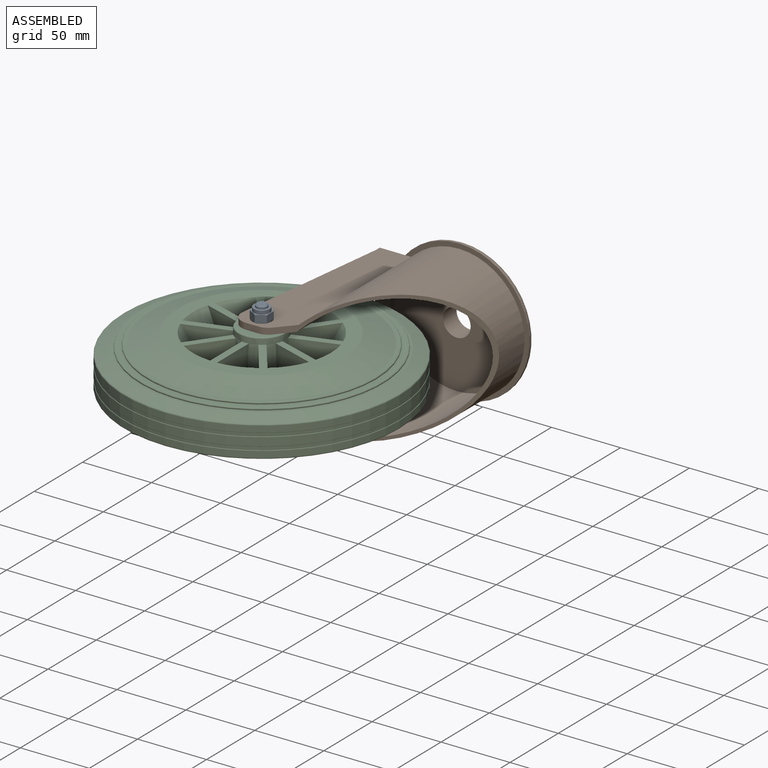
[diagram: assembled view]
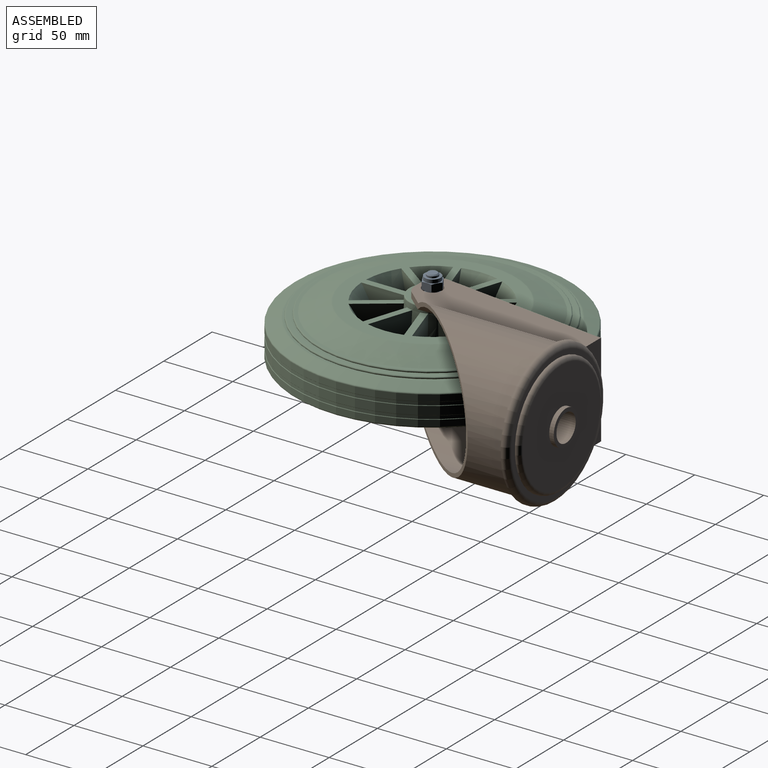
[diagram: assembled view, second angle]
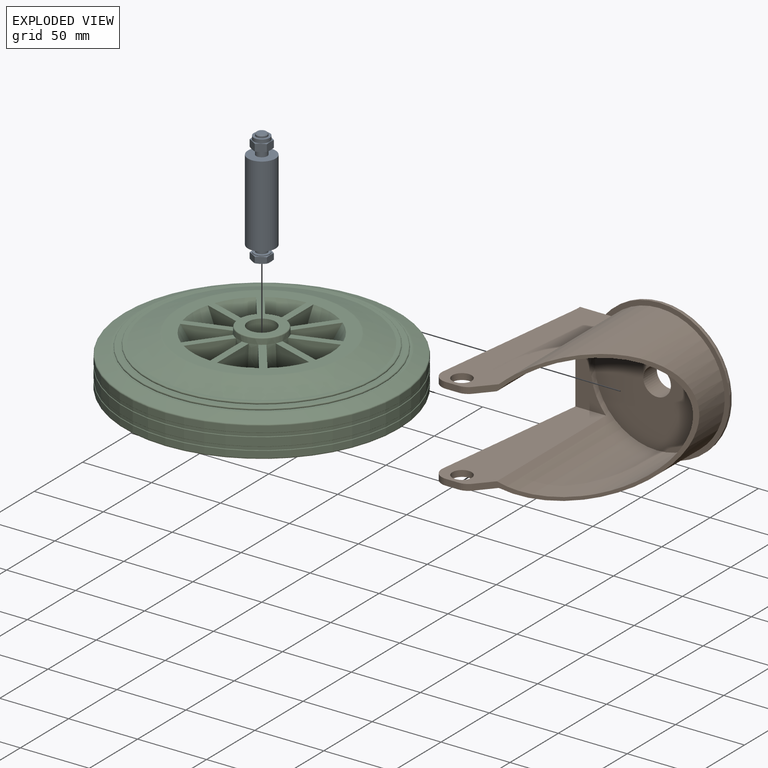
[diagram: exploded view]
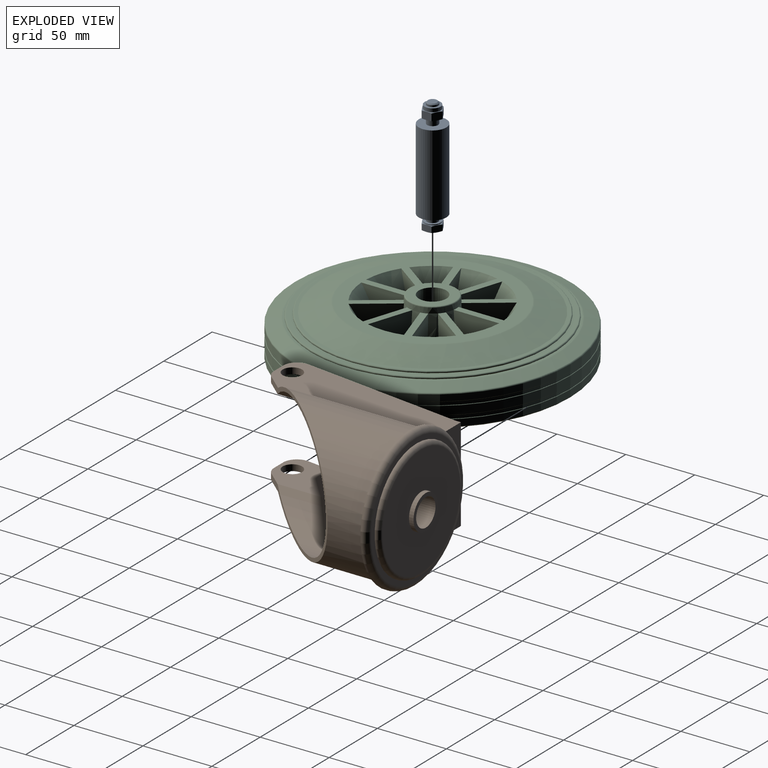
[diagram: exploded view, second angle]
ASSEMBLY  parts=3 mates=2
PART A: 52 faces, bbox 20.5x20.5x83.8 mm
  f0: cone r=4mm half-angle=45deg, axis (0,0,-1), area 24.6mm2, adj f4,f47
  f1: cylinder r=5.81mm len=11.63mm, axis (0,0,1), area 21.9mm2, adj f28,f46
  f2: cylinder r=5.81mm len=11.63mm, axis (0,0,1), area 91.3mm2, adj f12,f41
  f3: cylinder r=4mm len=8mm, axis (0,0,1), area 113.1mm2, adj f45,f46
  f4: cylinder r=4mm len=8mm, axis (0,0,1), area 31mm2, adj f0,f41
  f5: cylinder r=4mm len=8mm, axis (0,0,1), area 113.1mm2, adj f15,f44
  f6: cylinder r=10mm len=59mm, axis (0,0,1), area 3707.1mm2, adj f44,f45
  f7: cone r=7.51mm half-angle=75deg, axis (0,0,1), area 3.5mm2, adj f15,f16,f20
  f8: plane 12.52x12.52mm, normal (0,0,-1), area 123mm2, adj f29,f32,f48,f49,f50,f51
  f9: plane 6.78x6.03mm, normal (-0.5,0.87,0), area 38.5mm2, adj f10,f11,f14,f19,f39,f40
  f10: cone r=6.26mm half-angle=75deg, axis (0,0,-1), area 3.5mm2, adj f9,f12,f14
  f11: cone r=6.26mm half-angle=75deg, axis (0,0,-1), area 3.5mm2, adj f9,f12,f19
  f12: plane 12.52x12.52mm, normal (0,0,1), area 16.8mm2, adj f2,f10,f11,f17,f18,f42,f43
  f13: cone r=7.51mm half-angle=75deg, axis (0,0,1), area 3.5mm2, adj f15,f19,f21
  f14: plane 6.78x6.03mm, normal (0.5,0.87,0), area 38.5mm2, adj f9,f10,f16,f38,f40,f42
  f15: plane 12.52x12.52mm, normal (0,0,-1), area 72.8mm2, adj f5,f7,f13,f22,f38,f39,f40
  f16: plane 7.76x6.04mm, normal (1,0,0), area 38.5mm2, adj f7,f14,f20,f38,f42,f43
  f17: cone r=6.26mm half-angle=75deg, axis (0,0,-1), area 3.5mm2, adj f12,f19,f21
  f18: cone r=6.26mm half-angle=75deg, axis (0,0,-1), area 3.5mm2, adj f12,f20,f21
  f19: plane 7.76x6.04mm, normal (-1,0,0), area 38.5mm2, adj f9,f11,f13,f17,f21,f39
  f20: plane 6.78x6.03mm, normal (0.5,-0.87,0), area 38.5mm2, adj f7,f16,f18,f21,f22,f43
  f21: plane 6.78x6.03mm, normal (-0.5,-0.87,0), area 38.5mm2, adj f13,f17,f18,f19,f20,f22
  f22: cone r=7.51mm half-angle=75deg, axis (0,0,1), area 3.5mm2, adj f15,f20,f21
  f23: plane 7.76x5.24mm, normal (-1,0,0), area 32.7mm2, adj f24,f25,f29,f32,f33,f35
  f24: cone r=7.51mm half-angle=75deg, axis (0,0,-1), area 3.5mm2, adj f23,f28,f35
  f25: cone r=7.51mm half-angle=75deg, axis (0,0,-1), area 3.5mm2, adj f23,f28,f33
  f26: cone r=7.51mm half-angle=75deg, axis (0,0,-1), area 3.5mm2, adj f28,f34,f35
  f27: cone r=7.51mm half-angle=75deg, axis (0,0,-1), area 3.5mm2, adj f28,f31,f34
  f28: plane 12.52x12.52mm, normal (0,0,1), area 16.8mm2, adj f1,f24,f25,f26,f27,f36,f37
  f29: cone r=6.26mm half-angle=75deg, axis (0,0,1), area 3.5mm2, adj f8,f23,f35
  f30: plane 6.78x5.23mm, normal (0.5,0.87,0), area 32.7mm2, adj f31,f33,f36,f37,f48,f49
  f31: plane 7.76x5.24mm, normal (1,0,0), area 32.7mm2, adj f27,f30,f34,f37,f49,f50
  f32: cone r=6.26mm half-angle=75deg, axis (0,0,1), area 3.5mm2, adj f8,f23,f33
  f33: plane 6.78x5.23mm, normal (-0.5,0.87,0), area 32.7mm2, adj f23,f25,f30,f32,f36,f48
  f34: plane 6.78x5.23mm, normal (0.5,-0.87,0), area 32.7mm2, adj f26,f27,f31,f35,f50,f51
  f35: plane 6.78x5.23mm, normal (-0.5,-0.87,0), area 32.7mm2, adj f23,f24,f26,f29,f34,f51
  f36: cone r=7.51mm half-angle=75deg, axis (0,0,-1), area 3.5mm2, adj f28,f30,f33
  f37: cone r=7.51mm half-angle=75deg, axis (0,0,-1), area 3.5mm2, adj f28,f30,f31
  f38: cone r=7.51mm half-angle=75deg, axis (0,0,1), area 3.5mm2, adj f14,f15,f16
  f39: cone r=7.51mm half-angle=75deg, axis (0,0,1), area 3.5mm2, adj f9,f15,f19
  f40: cone r=7.51mm half-angle=75deg, axis (0,0,1), area 3.5mm2, adj f9,f14,f15
  f41: plane 11.63x11.63mm, normal (0,0,1), area 56mm2, adj f2,f4
  f42: cone r=6.26mm half-angle=75deg, axis (0,0,-1), area 3.5mm2, adj f12,f14,f16
  f43: cone r=6.26mm half-angle=75deg, axis (0,0,-1), area 3.5mm2, adj f12,f16,f20
  f44: plane 20x20mm, normal (0,0,1), area 263.9mm2, adj f5,f6
  f45: plane 20x20mm, normal (0,0,-1), area 263.9mm2, adj f3,f6
  f46: plane 11.63x11.63mm, normal (0,0,1), area 56mm2, adj f1,f3
  f47: plane 6.47x6.47mm, normal (0,0,1), area 32.8mm2, adj f0
  f48: cone r=6.26mm half-angle=75deg, axis (0,0,1), area 3.5mm2, adj f8,f30,f33
  f49: cone r=6.26mm half-angle=75deg, axis (0,0,1), area 3.5mm2, adj f8,f30,f31
  f50: cone r=6.26mm half-angle=75deg, axis (0,0,1), area 3.5mm2, adj f8,f31,f34
  f51: cone r=6.26mm half-angle=75deg, axis (0,0,1), area 3.5mm2, adj f8,f34,f35
PART B: 30 faces, bbox 129.8x149.9x114.3 mm
  f0: cylinder r=10mm len=20mm, axis (0,-1,0), area 879.6mm2, adj f12,f26
  f1: cylinder r=51mm len=102mm, axis (0,-1,0), area 320.4mm2, adj f2,f28
  f2: torus R=47mm, axis (0,-1,0), area 1956mm2, adj f1,f29
  f3: cylinder r=43.35mm len=86.7mm, axis (0,-1,0), area 136.2mm2, adj f4,f29
  f4: torus R=40.35mm, axis (0,-1,0), area 1251.3mm2, adj f3,f27
  f5: cylinder r=12.75mm len=25.5mm, axis (0,-1,0), area 264.4mm2, adj f26,f27
  f6: cylinder r=7mm len=14mm, axis (0,0,-1), area 197.9mm2, adj f14,f18
  f7: cylinder r=7mm len=14mm, axis (0,0,-1), area 197.9mm2, adj f20,f23
  f8: cylinder r=10mm len=11.24mm, axis (0,0,-1), area 76.3mm2, adj f19,f20,f22,f23
  f9: cylinder r=10mm len=11.24mm, axis (0,0,-1), area 76.3mm2, adj f14,f17,f18,f19
  f10: cylinder r=45mm len=117.38mm, axis (0,-1,0), area 14340.5mm2, adj f12,f13,f14,f15,f20
  f11: cylinder r=47.5mm len=118.65mm, axis (0,-1,0), area 14418.2mm2, adj f15,f18,f23,f24,f28
  f12: plane 90x90mm, normal (0,-1,0), area 6047.6mm2, adj f0,f10
  f13: plane 59x22.14mm, normal (0,-1,0), area 861.2mm2, adj f10,f14,f19,f20
  f14: plane 127.5x36.72mm, normal (0,0,-1), area 3558.2mm2, adj f6,f9,f10,f13,f15,f16,f17,f19
  f15: plane 108.41x98.94mm, normal (0.75,-0.66,0), area 977.1mm2, adj f10,f11,f14,f16,f18,f20,f21,f23
  f16: cylinder r=10mm len=7.53mm, axis (0,0,-1), area 38.4mm2, adj f14,f15,f17,f18
  f17: plane 9.4x4.5mm, normal (0,-1,0), area 42.3mm2, adj f9,f14,f16,f18
  f18: plane 132.2x37.53mm, normal (0,0,1), area 3756.8mm2, adj f6,f9,f11,f15,f16,f17,f19,f24
  f19: plane 117.26x68mm, normal (-0.99,0.12,0), area 1123mm2, adj f8,f9,f13,f14,f18,f20,f23,f25
  f20: plane 127.5x36.72mm, normal (0,0,1), area 3558.2mm2, adj f7,f8,f10,f13,f15,f19,f21,f22
  f21: cylinder r=10mm len=7.53mm, axis (0,0,-1), area 38.4mm2, adj f15,f20,f22,f23
  f22: plane 9.4x4.5mm, normal (0,-1,0), area 42.3mm2, adj f8,f20,f21,f23
  f23: plane 132.2x37.53mm, normal (0,0,-1), area 3756.8mm2, adj f7,f8,f11,f15,f19,f21,f22,f24
  f24: plane 68x22.83mm, normal (0,1,0), area 880.3mm2, adj f11,f18,f23,f25
  f25: plane 68x3.7mm, normal (-1,0,0), area 251.6mm2, adj f18,f19,f23,f24
  f26: plane 25.5x25.5mm, normal (0,1,0), area 196.5mm2, adj f0,f5
  f27: plane 80.7x80.7mm, normal (0,1,0), area 4604.2mm2, adj f4,f5
  f28: plane 102x102mm, normal (0,-1,0), area 1083.1mm2, adj f1,f11
  f29: plane 94x94mm, normal (0,1,0), area 1036mm2, adj f2,f3
PART C: 139 faces, bbox 216.5x216.5x59 mm
  f0: torus R=87.26mm, axis (0,0,-1), area 1444.1mm2, adj f137,f138
  f1: torus R=82.42mm, axis (0,0,-1), area 1364.5mm2, adj f136,f137
  f2: torus R=82.42mm, axis (0,0,-1), area 1364.5mm2, adj f134,f135
  f3: torus R=87.26mm, axis (0,0,-1), area 1444.1mm2, adj f133,f134
  f4: cylinder r=100mm len=200mm, axis (0,0,-1), area 2836mm2, adj f5,f26
  f5: torus R=99mm, axis (0,0,-1), area 776.8mm2, adj f4,f6
  f6: cone r=90.16mm half-angle=71deg, axis (0,0,1), area 5773.3mm2, adj f5,f7
  f7: torus R=89.18mm, axis (0,0,-1), area 560.5mm2, adj f6,f138
  f8: cone r=60.47mm half-angle=71deg, axis (0,0,1), area 9113.3mm2, adj f9,f136
  f9: torus R=59.5mm, axis (0,0,-1), area 375mm2, adj f8,f38
  f10: torus R=59.5mm, axis (0,0,-1), area 375mm2, adj f11,f53
  f11: cone r=80mm half-angle=71deg, axis (0,0,-1), area 9113.3mm2, adj f10,f135
  f12: torus R=89.18mm, axis (0,0,-1), area 560.5mm2, adj f13,f133
  f13: cone r=99.33mm half-angle=71deg, axis (0,0,-1), area 5773.3mm2, adj f12,f14
  f14: torus R=99mm, axis (0,0,-1), area 776.8mm2, adj f13,f15
  f15: cylinder r=100mm len=200mm, axis (0,0,-1), area 2836mm2, adj f14,f16
  f16: torus R=99.7mm, axis (0,0,-1), area 295.8mm2, adj f15,f17
  f17: cylinder r=99.7mm len=199.4mm, axis (0,0,-1), area 1503.4mm2, adj f16,f18
  f18: torus R=99.7mm, axis (0,0,-1), area 295.8mm2, adj f17,f19
  f19: cylinder r=100mm len=200mm, axis (0,0,-1), area 3769.9mm2, adj f18,f36
  f20: torus R=40.91mm, axis (0,0,-1), area 16.4mm2, adj f21,f58,f63,f86
  f21: cone r=50mm half-angle=30deg, axis (0,0,1), area 400.8mm2, adj f20,f53,f58,f63
  f22: torus R=40.91mm, axis (0,0,-1), area 16.4mm2, adj f28,f41,f74,f108
  f23: torus R=40.91mm, axis (0,0,-1), area 16.4mm2, adj f24,f66,f84,f85
  f24: cone r=41.56mm half-angle=30deg, axis (0,0,-1), area 400.8mm2, adj f23,f38,f66,f84
  f25: cylinder r=10mm len=59mm, axis (0,0,-1), area 3707.1mm2, adj f80,f81
  f26: torus R=99.7mm, axis (0,0,-1), area 295.8mm2, adj f4,f30
  f27: torus R=16.29mm, axis (0,0,-1), area 119.9mm2, adj f31,f81
  f28: cone r=50mm half-angle=30deg, axis (0,0,1), area 400.8mm2, adj f22,f41,f53,f74
  f29: torus R=40.91mm, axis (0,0,-1), area 16.4mm2, adj f35,f39,f46,f96
  f30: cylinder r=99.7mm len=199.4mm, axis (0,0,-1), area 1503.4mm2, adj f26,f36
  f31: cone r=18.55mm half-angle=3deg, axis (0,0,-1), area 1318.5mm2, adj f27,f41,f42,f43,f48,f49,f53,f54
  f32: cone r=17.04mm half-angle=3deg, axis (0,0,1), area 1317.6mm2, adj f33,f34,f38,f39,f46,f47,f50,f56
  f33: cone r=17.04mm half-angle=3deg, axis (0,0,1), area 0.9mm2, adj f32,f66,f85
  f34: torus R=16.29mm, axis (0,0,-1), area 119.9mm2, adj f32,f80
  f35: cone r=41.56mm half-angle=30deg, axis (0,0,-1), area 400.8mm2, adj f29,f38,f39,f96
  f36: torus R=99.7mm, axis (0,0,-1), area 295.8mm2, adj f19,f30
  f37: cone r=50mm half-angle=30deg, axis (0,0,1), area 400.8mm2, adj f43,f48,f52,f53
  f38: plane 119x119mm, normal (0,0,-1), area 4907.5mm2, adj f9,f24,f32,f35,f39,f40,f50,f56
  f39: plane 31.32x15.04mm, normal (-0.31,0.95,0), area 422.2mm2, adj f29,f32,f35,f38,f46
  f40: cone r=41.56mm half-angle=30deg, axis (0,0,-1), area 400.8mm2, adj f38,f44,f50,f113
  f41: plane 31.32x15.04mm, normal (-0.31,0.95,0), area 422.2mm2, adj f22,f28,f31,f53,f108
  f42: plane 26.65x19.37mm, normal (0.81,-0.59,0), area 422.2mm2, adj f31,f51,f53,f110,f124
  f43: plane 31.32x15.04mm, normal (0.31,-0.95,0), area 422.2mm2, adj f31,f37,f52,f53,f92
  f44: torus R=40.91mm, axis (0,0,-1), area 16.4mm2, adj f40,f47,f50,f113
  f45: torus R=40.91mm, axis (0,0,-1), area 16.4mm2, adj f56,f90,f91,f112
  f46: plane 23.16x20.48mm, normal (0,0,-1), area 309.1mm2, adj f29,f32,f39,f96
  f47: plane 25.55x23.67mm, normal (0,0,-1), area 309.1mm2, adj f32,f44,f50,f113
  f48: plane 26.65x19.37mm, normal (-0.81,0.59,0), area 422.2mm2, adj f31,f37,f52,f53,f92
  f49: plane 32.93x15.04mm, normal (1,0,0), area 422.2mm2, adj f31,f53,f111,f125,f129
  f50: plane 26.65x19.37mm, normal (-0.81,0.59,0), area 422.2mm2, adj f32,f38,f40,f44,f47
  f51: cone r=50mm half-angle=30deg, axis (0,0,1), area 400.8mm2, adj f42,f53,f54,f124
  f52: torus R=40.91mm, axis (0,0,-1), area 16.4mm2, adj f37,f43,f48,f92
  f53: plane 119x119mm, normal (0,0,1), area 4907.5mm2, adj f10,f21,f28,f31,f37,f41,f42,f43
  f54: plane 32.93x15.04mm, normal (-1,0,0), area 422.2mm2, adj f31,f51,f53,f110,f124
  f55: plane 26.65x19.37mm, normal (0.81,0.59,0), area 422.2mm2, adj f31,f53,f120,f121,f122
  f56: plane 32.93x15.04mm, normal (-1,0,0), area 422.2mm2, adj f32,f38,f45,f90,f112
  f57: plane 26.65x19.37mm, normal (-0.81,-0.59,0), area 422.2mm2, adj f31,f53,f111,f125,f129
  f58: plane 31.32x15.04mm, normal (0.31,0.95,0), area 422.2mm2, adj f20,f21,f31,f53,f86
  f59: plane 26.65x19.37mm, normal (-0.81,-0.59,0), area 422.2mm2, adj f32,f38,f78,f79,f119
  f60: plane 31.32x15.04mm, normal (-0.31,-0.95,0), area 422.2mm2, adj f31,f53,f120,f121,f122
  f61: plane 31.32x15.04mm, normal (-0.31,0.95,0), area 422.2mm2, adj f32,f38,f82,f83,f117
  f62: plane 31.32x15.04mm, normal (-0.31,-0.95,0), area 422.2mm2, adj f32,f38,f88,f89,f118
  f63: plane 31.32x15.04mm, normal (0.31,-0.95,0), area 422.2mm2, adj f20,f21,f31,f53,f86
  f64: plane 26.65x19.37mm, normal (-0.81,0.59,0), area 422.2mm2, adj f31,f53,f106,f127,f131
  f65: plane 31.32x15.04mm, normal (-0.31,0.95,0), area 422.2mm2, adj f31,f53,f109,f128,f130
  f66: plane 31.32x15.04mm, normal (0.31,-0.95,0), area 422.2mm2, adj f23,f24,f33,f38,f85
  f67: plane 26.65x19.37mm, normal (0.81,-0.59,0), area 422.2mm2, adj f31,f53,f109,f128,f130
  f68: plane 32.93x15.04mm, normal (-1,0,0), area 422.2mm2, adj f31,f53,f107,f126,f132
  f69: plane 26.65x19.37mm, normal (0.81,-0.59,0), area 422.2mm2, adj f32,f38,f82,f83,f117
  f70: plane 32.93x15.04mm, normal (1,0,0), area 422.2mm2, adj f31,f53,f106,f127,f131
  f71: plane 26.65x19.37mm, normal (-0.81,-0.59,0), area 422.2mm2, adj f31,f53,f93,f94,f114
  f72: plane 32.93x15.04mm, normal (1,0,0), area 422.2mm2, adj f32,f38,f102,f103,f104
  f73: plane 26.65x19.37mm, normal (0.81,0.59,0), area 422.2mm2, adj f31,f53,f107,f126,f132
  f74: plane 31.32x15.04mm, normal (-0.31,-0.95,0), area 422.2mm2, adj f22,f28,f31,f53,f108
  f75: plane 26.65x19.37mm, normal (0.81,0.59,0), area 422.2mm2, adj f32,f38,f99,f100,f101
  f76: plane 31.32x15.04mm, normal (0.31,0.95,0), area 422.2mm2, adj f31,f53,f93,f94,f114
  f77: plane 31.32x15.04mm, normal (0.31,0.95,0), area 422.2mm2, adj f32,f38,f98,f115,f116
  f78: torus R=40.91mm, axis (0,0,-1), area 16.4mm2, adj f59,f79,f119,f123
  f79: cone r=41.56mm half-angle=30deg, axis (0,0,-1), area 400.8mm2, adj f38,f59,f78,f123
  f80: plane 32.58x32.58mm, normal (0,0,-1), area 519.3mm2, adj f25,f34
  f81: plane 32.58x32.58mm, normal (0,0,1), area 519.3mm2, adj f25,f27
  f82: torus R=40.91mm, axis (0,0,-1), area 16.4mm2, adj f61,f69,f83,f117
  f83: cone r=41.56mm half-angle=30deg, axis (0,0,-1), area 400.8mm2, adj f38,f61,f69,f82
  f84: plane 31.32x15.04mm, normal (0.31,0.95,0), area 422.2mm2, adj f23,f24,f32,f38,f85
  f85: plane 23.16x20.48mm, normal (0,0,-1), area 309.1mm2, adj f23,f32,f33,f66,f84
  f86: plane 23.16x20.48mm, normal (0,0,1), area 309.1mm2, adj f20,f31,f58,f63
  f87: plane 26.65x19.37mm, normal (0.81,0.59,0), area 422.2mm2, adj f32,f38,f88,f89,f118
  f88: torus R=40.91mm, axis (0,0,-1), area 16.4mm2, adj f62,f87,f89,f118
  f89: cone r=41.56mm half-angle=30deg, axis (0,0,-1), area 400.8mm2, adj f38,f62,f87,f88
  f90: cone r=41.56mm half-angle=30deg, axis (0,0,-1), area 400.8mm2, adj f38,f45,f56,f91
  f91: plane 26.65x19.37mm, normal (0.81,-0.59,0), area 422.2mm2, adj f32,f38,f45,f90,f112
  f92: plane 25.55x23.67mm, normal (0,0,1), area 309.1mm2, adj f31,f43,f48,f52
  f93: torus R=40.91mm, axis (0,0,-1), area 16.4mm2, adj f71,f76,f94,f114
  f94: plane 25.55x23.67mm, normal (0,0,1), area 309.1mm2, adj f31,f71,f76,f93
  f95: plane 26.65x19.37mm, normal (-0.81,-0.59,0), area 422.2mm2, adj f32,f38,f98,f115,f116
  f96: plane 31.32x15.04mm, normal (-0.31,-0.95,0), area 422.2mm2, adj f29,f32,f35,f38,f46
  f97: plane 32.93x15.04mm, normal (-1,0,0), area 422.2mm2, adj f32,f38,f99,f100,f101
  f98: cone r=41.56mm half-angle=30deg, axis (0,0,-1), area 400.8mm2, adj f38,f77,f95,f115
  f99: cone r=41.56mm half-angle=30deg, axis (0,0,-1), area 400.8mm2, adj f38,f75,f97,f100
  f100: torus R=40.91mm, axis (0,0,-1), area 16.4mm2, adj f75,f97,f99,f101
  f101: plane 24.92x19.48mm, normal (0,0,-1), area 309.1mm2, adj f32,f75,f97,f100
  f102: plane 24.92x19.48mm, normal (0,0,-1), area 309.1mm2, adj f32,f72,f103,f105
  f103: torus R=40.91mm, axis (0,0,-1), area 16.4mm2, adj f72,f102,f104,f105
  f104: cone r=41.56mm half-angle=30deg, axis (0,0,-1), area 400.8mm2, adj f38,f72,f103,f105
  f105: plane 26.65x19.37mm, normal (-0.81,0.59,0), area 422.2mm2, adj f32,f38,f102,f103,f104
  f106: plane 24.92x19.48mm, normal (0,0,1), area 309.1mm2, adj f31,f64,f70,f131
  f107: plane 24.92x19.48mm, normal (0,0,1), area 309.1mm2, adj f31,f68,f73,f132
  f108: plane 23.16x20.48mm, normal (0,0,1), area 309.1mm2, adj f22,f31,f41,f74
  f109: plane 25.55x23.67mm, normal (0,0,1), area 309.1mm2, adj f31,f65,f67,f130
  f110: plane 24.92x19.48mm, normal (0,0,1), area 309.1mm2, adj f31,f42,f54,f124
  f111: plane 24.92x19.48mm, normal (0,0,1), area 309.1mm2, adj f31,f49,f57,f125
  f112: plane 24.92x19.48mm, normal (0,0,-1), area 309.1mm2, adj f32,f45,f56,f91
  f113: plane 31.32x15.04mm, normal (0.31,-0.95,0), area 422.2mm2, adj f32,f38,f40,f44,f47
  f114: cone r=50mm half-angle=30deg, axis (0,0,1), area 400.8mm2, adj f53,f71,f76,f93
  f115: torus R=40.91mm, axis (0,0,-1), area 16.4mm2, adj f77,f95,f98,f116
  f116: plane 25.55x23.67mm, normal (0,0,-1), area 309.1mm2, adj f32,f77,f95,f115
  f117: plane 25.55x23.67mm, normal (0,0,-1), area 309.1mm2, adj f32,f61,f69,f82
  f118: plane 25.55x23.67mm, normal (0,0,-1), area 309.1mm2, adj f32,f62,f87,f88
  f119: plane 24.92x19.48mm, normal (0,0,-1), area 309.1mm2, adj f32,f59,f78,f123
  f120: cone r=50mm half-angle=30deg, axis (0,0,1), area 400.8mm2, adj f53,f55,f60,f121
  f121: torus R=40.91mm, axis (0,0,-1), area 16.4mm2, adj f55,f60,f120,f122
  f122: plane 25.55x23.67mm, normal (0,0,1), area 309.1mm2, adj f31,f55,f60,f121
  f123: plane 32.93x15.04mm, normal (1,0,0), area 422.2mm2, adj f32,f38,f78,f79,f119
  f124: torus R=40.91mm, axis (0,0,-1), area 16.4mm2, adj f42,f51,f54,f110
  f125: torus R=40.91mm, axis (0,0,-1), area 16.4mm2, adj f49,f57,f111,f129
  f126: cone r=50mm half-angle=30deg, axis (0,0,1), area 400.8mm2, adj f53,f68,f73,f132
  f127: cone r=50mm half-angle=30deg, axis (0,0,1), area 400.8mm2, adj f53,f64,f70,f131
  f128: cone r=50mm half-angle=30deg, axis (0,0,1), area 400.8mm2, adj f53,f65,f67,f130
  f129: cone r=50mm half-angle=30deg, axis (0,0,1), area 400.8mm2, adj f49,f53,f57,f125
  f130: torus R=40.91mm, axis (0,0,-1), area 16.4mm2, adj f65,f67,f109,f128
  f131: torus R=40.91mm, axis (0,0,-1), area 16.4mm2, adj f64,f70,f106,f127
  f132: torus R=40.91mm, axis (0,0,-1), area 16.4mm2, adj f68,f73,f107,f126
  f133: plane 178.36x178.36mm, normal (0,0,1), area 1063.2mm2, adj f3,f12
  f134: plane 174.52x174.52mm, normal (0,0,1), area 2580.2mm2, adj f2,f3
  f135: plane 164.84x164.84mm, normal (0,0,1), area 1234.9mm2, adj f2,f11
  f136: plane 164.84x164.84mm, normal (0,0,-1), area 1234.9mm2, adj f1,f8
  f137: plane 174.52x174.52mm, normal (0,0,-1), area 2580.2mm2, adj f0,f1
  f138: plane 178.36x178.36mm, normal (0,0,-1), area 1063.2mm2, adj f0,f7
PLACE A at identity
PLACE B at identity
PLACE C at identity fixed
MATE fastened B.f6 <-> C.f10  axis (0,0,1) through (0,0,-29.5)mm
MATE fastened A.f0 <-> C.f10  axis (0,0,-1) through (0,0,-29.5)mm
